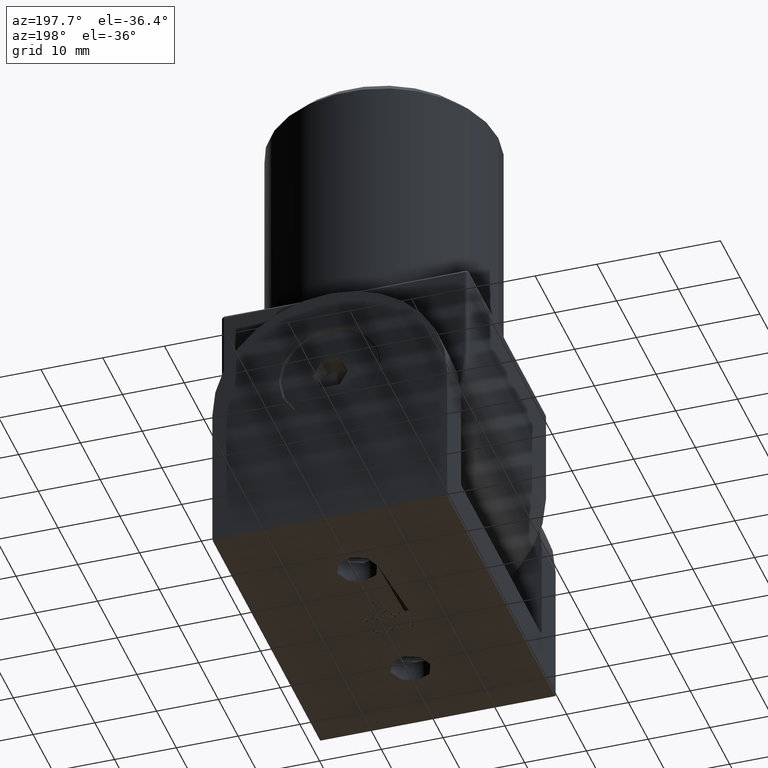
[diagram: clean part render]
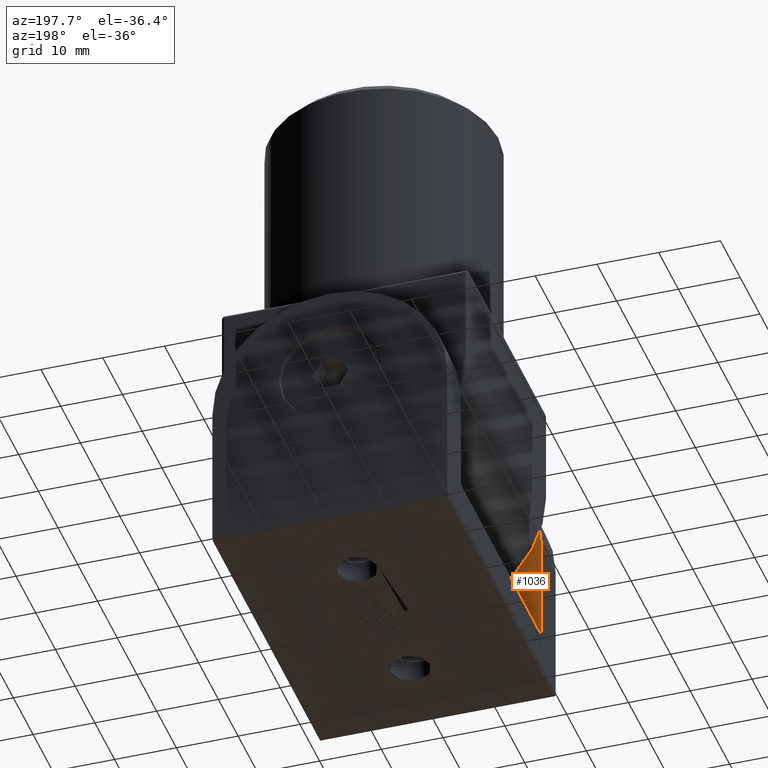
[diagram: same view with one face highlighted and labeled with its STEP entity id]
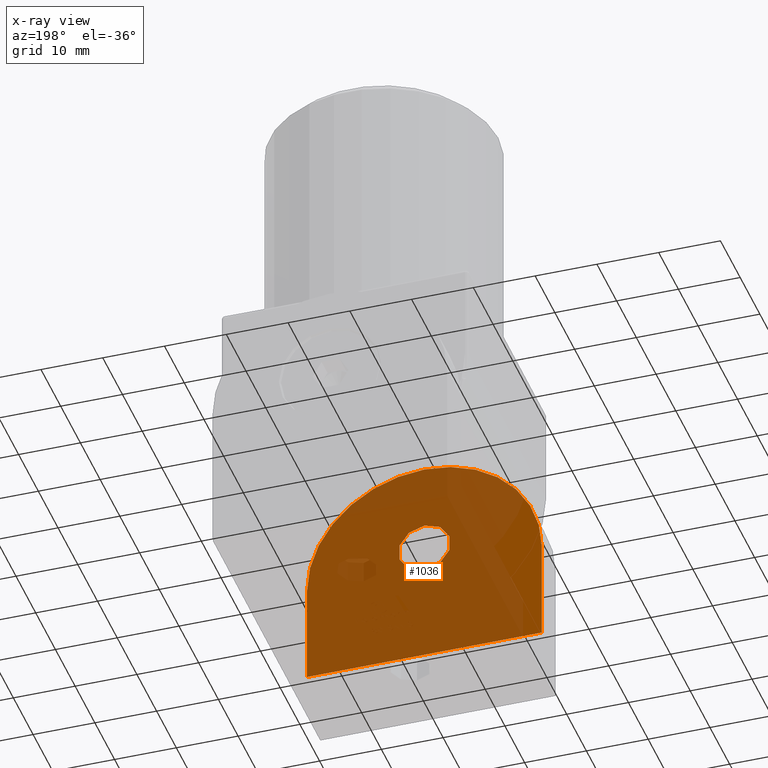
[diagram: x-ray of the same camera — body ghosted, the highlighted face saturated]
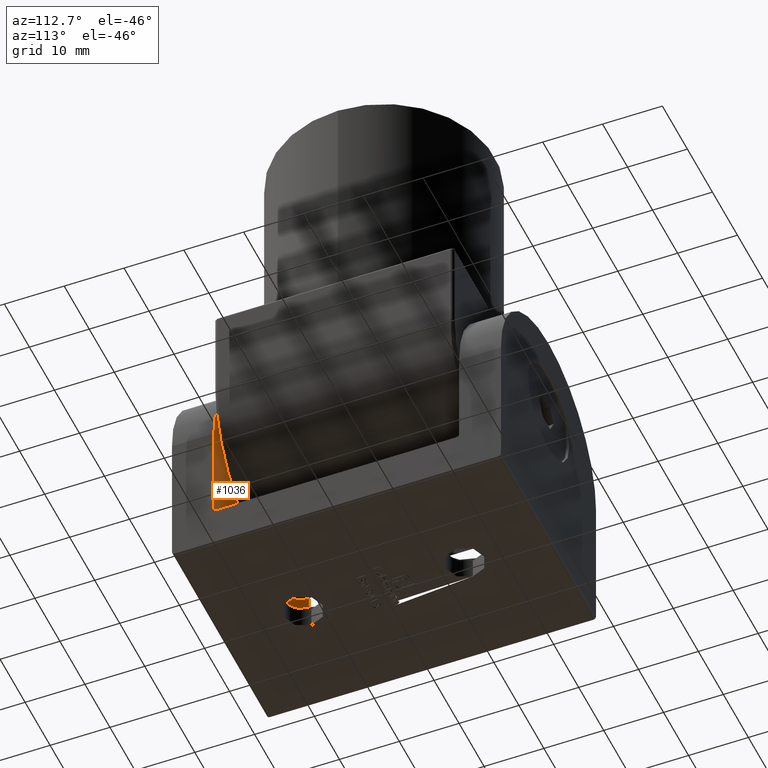
[diagram: same view with one face highlighted and labeled with its STEP entity id]
A machine part, auxiliary view. The second image highlights one B-rep face of the part: STEP entity #1036.
The next image is the same camera in x-ray: the body ghosted, the highlighted face saturated — about 90% of this face is hidden behind the body in this view.
A second angle (auxiliary view) of the same face is appended — the face is thin or edge-on in the first view.
In plain terms, the highlighted planar face has unit normal (0, -1, -0).
Its self-contained STEP definition (entity closure, byte-faithful):
#347 = CIRCLE ( 'NONE', #19084, 19.00000000000000000 ) ;
#1036 = ADVANCED_FACE ( 'NONE', ( #2141, #9970 ), #3789, .F. ) ;
#1042 = CARTESIAN_POINT ( 'NONE',  ( -19.00000000000000000, -20.50000000000000000, 7.499999999999991118 ) ) ;
#1153 = EDGE_CURVE ( 'NONE', #9150, #1968, #20076, .T. ) ;
#1814 = VECTOR ( 'NONE', #8345, 1000.000000000000000 ) ;
#1968 = VERTEX_POINT ( 'NONE', #1042 ) ;
#2091 = DIRECTION ( 'NONE',  ( 0.000000000000000000, -1.000000000000000000, -1.927470528863118802E-16 ) ) ;
#2141 = FACE_BOUND ( 'NONE', #14207, .T. ) ;
#2456 = ORIENTED_EDGE ( 'NONE', *, *, #12937, .T. ) ;
#2804 = AXIS2_PLACEMENT_3D ( 'NONE', #3543, #19550, #5413 ) ;
#2838 = ORIENTED_EDGE ( 'NONE', *, *, #6149, .T. ) ;
#3543 = CARTESIAN_POINT ( 'NONE',  ( 0.000000000000000000, -20.50000000000000355, 27.99999999999998934 ) ) ;
#3789 = PLANE ( 'NONE',  #16062 ) ;
#4161 = DIRECTION ( 'NONE',  ( 0.000000000000000000, -1.000000000000000000, -1.927470528863118802E-16 ) ) ;
#4177 = CIRCLE ( 'NONE', #9702, 19.00000000000000000 ) ;
#5413 = DIRECTION ( 'NONE',  ( 0.000000000000000000, 0.000000000000000000, -1.000000000000000000 ) ) ;
#6149 = EDGE_CURVE ( 'NONE', #17170, #9746, #11764, .T. ) ;
#6449 = AXIS2_PLACEMENT_3D ( 'NONE', #13546, #4161, #15143 ) ;
#6822 = ORIENTED_EDGE ( 'NONE', *, *, #11293, .T. ) ;
#6900 = CARTESIAN_POINT ( 'NONE',  ( 19.00000000000000000, -20.50000000000000355, 23.99999999999999645 ) ) ;
#7406 = CIRCLE ( 'NONE', #2804, 4.249999999999996447 ) ;
#7802 = CARTESIAN_POINT ( 'NONE',  ( 5.204748896376250699E-16, -20.50000000000000355, 32.24999999999998579 ) ) ;
#8128 = VERTEX_POINT ( 'NONE', #15166 ) ;
#8207 = LINE ( 'NONE', #10880, #8719 ) ;
#8286 = VERTEX_POINT ( 'NONE', #8347 ) ;
#8345 = DIRECTION ( 'NONE',  ( 0.000000000000000000, -1.927470528863118802E-16, 1.000000000000000000 ) ) ;
#8347 = CARTESIAN_POINT ( 'NONE',  ( -19.00000000000000000, -20.50000000000000355, 23.99999999999999645 ) ) ;
#8388 = DIRECTION ( 'NONE',  ( -0.000000000000000000, 1.000000000000000000, 1.927470528863118802E-16 ) ) ;
#8719 = VECTOR ( 'NONE', #12397, 1000.000000000000000 ) ;
#9150 = VERTEX_POINT ( 'NONE', #19603 ) ;
#9634 = ORIENTED_EDGE ( 'NONE', *, *, #17591, .T. ) ;
#9702 = AXIS2_PLACEMENT_3D ( 'NONE', #17848, #8388, #9905 ) ;
#9746 = VERTEX_POINT ( 'NONE', #7802 ) ;
#9747 = CARTESIAN_POINT ( 'NONE',  ( -19.00000000000000000, -20.50000000000000000, 7.499999999999991118 ) ) ;
#9874 = DIRECTION ( 'NONE',  ( -1.000000000000000000, 0.000000000000000000, 0.000000000000000000 ) ) ;
#9905 = DIRECTION ( 'NONE',  ( 0.000000000000000000, 1.826024711554533667E-16, -1.000000000000000000 ) ) ;
#9942 = ORIENTED_EDGE ( 'NONE', *, *, #10088, .T. ) ;
#9970 = FACE_OUTER_BOUND ( 'NONE', #16446, .T. ) ;
#10088 = EDGE_CURVE ( 'NONE', #1968, #8286, #8207, .T. ) ;
#10275 = ORIENTED_EDGE ( 'NONE', *, *, #1153, .T. ) ;
#10880 = CARTESIAN_POINT ( 'NONE',  ( -19.00000000000000000, -20.50000000000000000, 6.999999999999991118 ) ) ;
#11293 = EDGE_CURVE ( 'NONE', #8286, #8128, #4177, .T. ) ;
#11764 = CIRCLE ( 'NONE', #6449, 4.249999999999996447 ) ;
#12397 = DIRECTION ( 'NONE',  ( 0.000000000000000000, -1.927470528863118802E-16, 1.000000000000000000 ) ) ;
#12575 = DIRECTION ( 'NONE',  ( -0.000000000000000000, 1.000000000000000000, 1.927470528863118802E-16 ) ) ;
#12870 = LINE ( 'NONE', #16433, #1814 ) ;
#12937 = EDGE_CURVE ( 'NONE', #8128, #17533, #347, .T. ) ;
#13546 = CARTESIAN_POINT ( 'NONE',  ( 0.000000000000000000, -20.50000000000000355, 27.99999999999998934 ) ) ;
#13878 = DIRECTION ( 'NONE',  ( 0.000000000000000000, 1.826024711554533667E-16, -1.000000000000000000 ) ) ;
#14207 = EDGE_LOOP ( 'NONE', ( #2838, #9634 ) ) ;
#14522 = EDGE_CURVE ( 'NONE', #9150, #17533, #12870, .T. ) ;
#14660 = DIRECTION ( 'NONE',  ( 0.000000000000000000, 1.927470528863118802E-16, -1.000000000000000000 ) ) ;
#15143 = DIRECTION ( 'NONE',  ( 0.000000000000000000, 0.000000000000000000, -1.000000000000000000 ) ) ;
#15166 = CARTESIAN_POINT ( 'NONE',  ( 0.000000000000000000, -20.50000000000000711, 43.00000000000000000 ) ) ;
#15259 = CARTESIAN_POINT ( 'NONE',  ( 0.000000000000000000, -20.50000000000000355, 23.74999999999999289 ) ) ;
#16062 = AXIS2_PLACEMENT_3D ( 'NONE', #18111, #2091, #14660 ) ;
#16433 = CARTESIAN_POINT ( 'NONE',  ( 19.00000000000000000, -20.50000000000000000, 6.999999999999991118 ) ) ;
#16446 = EDGE_LOOP ( 'NONE', ( #17146, #10275, #9942, #6822, #2456 ) ) ;
#17146 = ORIENTED_EDGE ( 'NONE', *, *, #14522, .F. ) ;
#17170 = VERTEX_POINT ( 'NONE', #15259 ) ;
#17533 = VERTEX_POINT ( 'NONE', #6900 ) ;
#17591 = EDGE_CURVE ( 'NONE', #9746, #17170, #7406, .T. ) ;
#17848 = CARTESIAN_POINT ( 'NONE',  ( 0.000000000000000000, -20.50000000000000355, 23.99999999999999645 ) ) ;
#18111 = CARTESIAN_POINT ( 'NONE',  ( 19.00000000000000000, -20.50000000000000000, 6.999999999999991118 ) ) ;
#18841 = VECTOR ( 'NONE', #9874, 1000.000000000000000 ) ;
#19084 = AXIS2_PLACEMENT_3D ( 'NONE', #20401, #12575, #13878 ) ;
#19550 = DIRECTION ( 'NONE',  ( 0.000000000000000000, -1.000000000000000000, -1.927470528863118802E-16 ) ) ;
#19603 = CARTESIAN_POINT ( 'NONE',  ( 19.00000000000000000, -20.50000000000000000, 7.499999999999991118 ) ) ;
#20076 = LINE ( 'NONE', #9747, #18841 ) ;
#20401 = CARTESIAN_POINT ( 'NONE',  ( 0.000000000000000000, -20.50000000000000355, 23.99999999999999645 ) ) ;